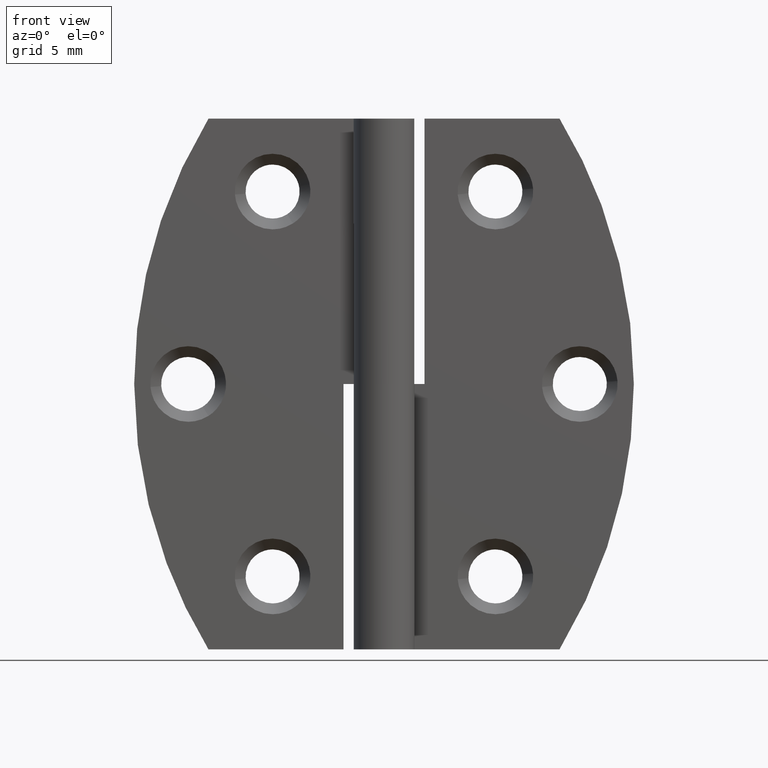
[diagram: clean part render]
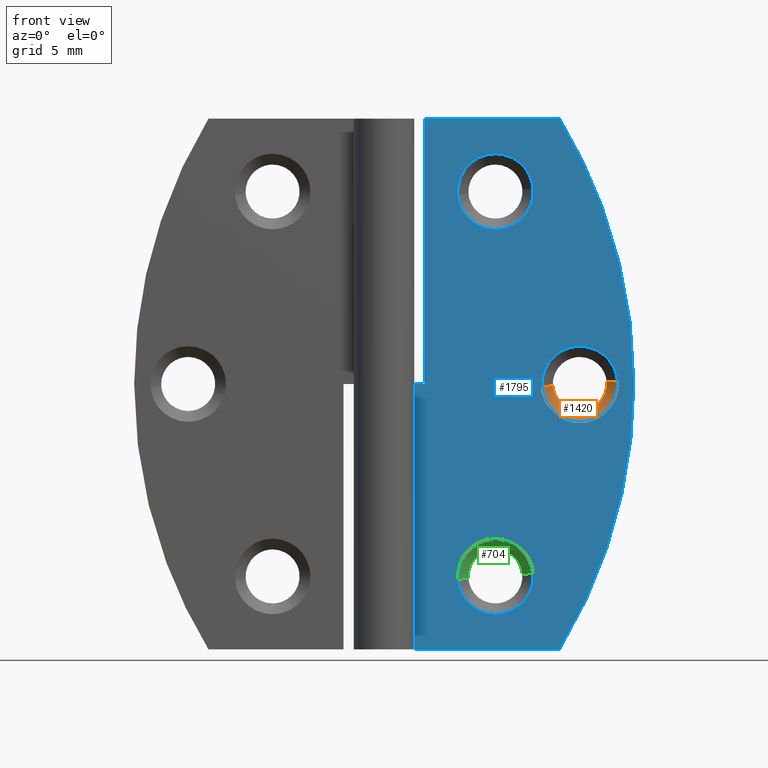
[diagram: same view with three faces highlighted in distinct colors, each labeled with its STEP entity id]
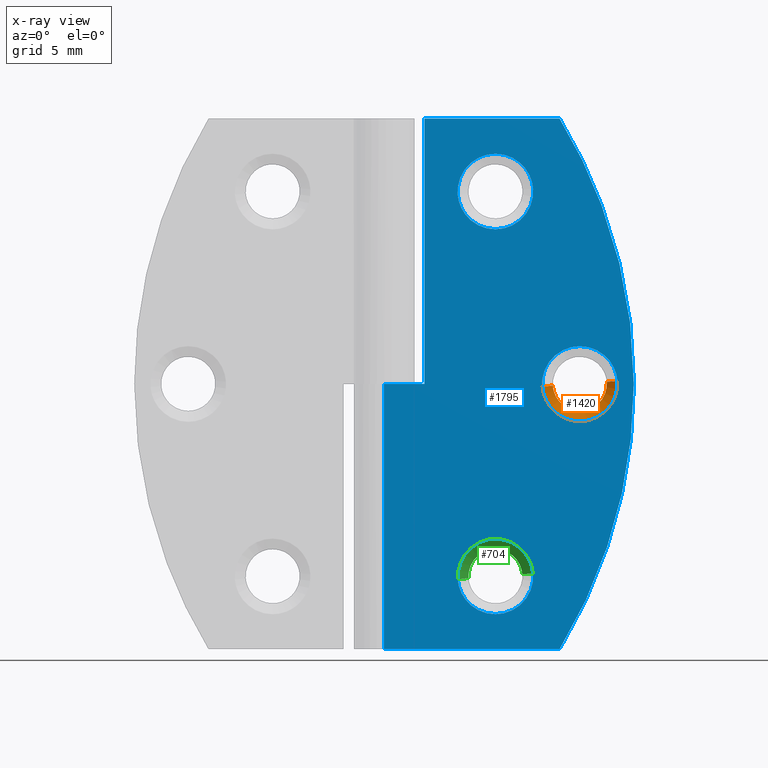
[diagram: x-ray of the same camera — body ghosted, the three highlighted faces saturated]
A machine part, front view with three faces highlighted in distinct colors.
The next image is the same camera in x-ray (body ghosted, the three faces saturated) — at least one of them is partly hidden behind the body in this view.
Their STEP definitions:

[orange] entity #1420 — the highlighted face is a freeform B-spline surface patch.
#1111=CARTESIAN_POINT('',(16.486938386870680,2.050000000000000,19.421800670512759));
#1112=VERTEX_POINT('',#1111);
#1113=CARTESIAN_POINT('',(14.500000000000000,2.050000000000000,17.650002000000001));
#1114=VERTEX_POINT('',#1113);
#1115=CARTESIAN_POINT('',(16.486938386870676,2.050000000000000,19.421800670512756));
#1116=CARTESIAN_POINT('',(16.283446011426051,2.050000000000000,17.650001999999994));
#1117=CARTESIAN_POINT('',(14.500000000000000,2.050000000000000,17.650002000000001));
#1125=(BOUNDED_CURVE()B_SPLINE_CURVE(2,(#1115,#1116,#1117),.UNSPECIFIED.,.F.,.U.)B_SPLINE_CURVE_WITH_KNOTS((3,3),(0.269767755877720,0.500000000000000),.UNSPECIFIED.)CURVE()GEOMETRIC_REPRESENTATION_ITEM()RATIONAL_B_SPLINE_CURVE((0.957343736458474,0.730266147777523,1.0))REPRESENTATION_ITEM(''));
#1126=EDGE_CURVE('',#1112,#1114,#1125,.T.);
#1165=CARTESIAN_POINT('',(12.503730392787149,2.049999999999717,19.527905090464120));
#1166=VERTEX_POINT('',#1165);
#1172=CARTESIAN_POINT('',(14.500000000000000,2.050000000000000,17.650002000000001));
#1173=CARTESIAN_POINT('',(12.618587706110493,2.049999999999999,17.650001999999997));
#1174=CARTESIAN_POINT('',(12.503730392787149,2.049999999999717,19.527905090464124));
#1182=(BOUNDED_CURVE()B_SPLINE_CURVE(2,(#1172,#1173,#1174),.UNSPECIFIED.,.F.,.U.)B_SPLINE_CURVE_WITH_KNOTS((3,3),(0.500000000000000,0.739332976895560),.UNSPECIFIED.)CURVE()GEOMETRIC_REPRESENTATION_ITEM()RATIONAL_B_SPLINE_CURVE((1.0,0.719603976115415,0.976072073078641))REPRESENTATION_ITEM(''));
#1183=EDGE_CURVE('',#1114,#1166,#1182,.T.);
#1210=CARTESIAN_POINT('',(16.493834667485281,2.049999999951913,19.806920191826809));
#1211=VERTEX_POINT('',#1210);
#1212=CARTESIAN_POINT('',(16.493834667485281,2.049999999951913,19.806920191826805));
#1213=CARTESIAN_POINT('',(16.500000000000007,2.050000000000000,19.728582214384385));
#1214=CARTESIAN_POINT('',(16.500000000000000,2.050000000000000,19.650002000000001));
#1215=CARTESIAN_POINT('',(16.500000000000004,2.050000000000001,19.535527529942829));
#1216=CARTESIAN_POINT('',(16.486938386870680,2.049999999999999,19.421800670512759));
#1224=(BOUNDED_CURVE()B_SPLINE_CURVE(2,(#1212,#1213,#1214,#1215,#1216),.UNSPECIFIED.,.F.,.U.)B_SPLINE_CURVE_WITH_KNOTS((3,2,3),(0.236331300569601,0.250000000000000,0.269767755877720),.UNSPECIFIED.)CURVE()GEOMETRIC_REPRESENTATION_ITEM()RATIONAL_B_SPLINE_CURVE((0.969723356039992,0.983986122507347,1.0,0.976840633409025,0.957343736458473))REPRESENTATION_ITEM(''));
#1225=EDGE_CURVE('',#1211,#1112,#1224,.T.);
#1313=CARTESIAN_POINT('',(17.291368534459469,1.249999999982986,19.869687468169520));
#1314=VERTEX_POINT('',#1313);
#1315=CARTESIAN_POINT('',(16.493834667485281,2.049999999951913,19.806920191826809));
#1316=CARTESIAN_POINT('',(17.291368534459469,1.249999999982986,19.869687468169520));
#1317=QUASI_UNIFORM_CURVE('',1,(#1315,#1316),.UNSPECIFIED.,.F.,.U.);
#1318=EDGE_CURVE('',#1211,#1314,#1317,.T.);
#1335=CARTESIAN_POINT('',(11.708631465540529,1.249999999982987,19.430316531830481));
#1336=VERTEX_POINT('',#1335);
#1352=CARTESIAN_POINT('',(12.503730392787149,2.049999999999717,19.527905090464120));
#1353=CARTESIAN_POINT('',(11.708631465540529,1.249999999982987,19.430316531830481));
#1354=QUASI_UNIFORM_CURVE('',1,(#1352,#1353),.UNSPECIFIED.,.F.,.U.);
#1355=EDGE_CURVE('',#1166,#1336,#1354,.T.);
#1361=CARTESIAN_POINT('',(12.521245478590592,2.070000000000001,19.556382282158193));
#1362=CARTESIAN_POINT('',(12.523658743511215,2.070000000000001,19.525718843994127));
#1363=CARTESIAN_POINT('',(12.681452688749539,2.070000000000001,17.520756669667275));
#1364=CARTESIAN_POINT('',(14.655349009541130,2.070000000000001,17.676105679208408));
#1365=CARTESIAN_POINT('',(16.629245330332726,2.070000000000001,17.831454688749542));
#1366=CARTESIAN_POINT('',(16.472794306479123,2.070000000000000,19.819353429017518));
#1367=CARTESIAN_POINT('',(16.471698749393667,2.070000000000000,19.833273801645429));
#1368=CARTESIAN_POINT('',(11.681274177962008,1.229500000000000,19.516641184761195));
#1369=CARTESIAN_POINT('',(11.684711861653234,1.229500000000000,19.472961271962330));
#1370=CARTESIAN_POINT('',(11.909488539706103,1.229500000000000,16.616902780705317));
#1371=CARTESIAN_POINT('',(14.721293879500390,1.229500000000000,16.838196660205710));
#1372=CARTESIAN_POINT('',(17.533099219294677,1.229500000000000,17.059490539706101));
#1373=CARTESIAN_POINT('',(17.310235525971908,1.229500000000000,19.891242255325210));
#1374=CARTESIAN_POINT('',(17.308674910436793,1.229499999999999,19.911071755828761));
#1382=(BOUNDED_SURFACE()B_SPLINE_SURFACE(2,1,((#1361,#1368),(#1362,#1369),(#1363,#1370),(#1364,#1371),(#1365,#1372),(#1366,#1373),(#1367,#1374)),.UNSPECIFIED.,.F.,.F.,.U.)B_SPLINE_SURFACE_WITH_KNOTS((3,1,2,1,3),(2,2),(0.0,0.104694727274855,4.777852137968115,9.451009548661375,9.498029496230796),(0.0,1.0),.UNSPECIFIED.)GEOMETRIC_REPRESENTATION_ITEM()RATIONAL_B_SPLINE_SURFACE(((1.013123621983784,1.013123621983784),(1.006561810991892,1.006561810991892),(0.707106781186548,0.707106781186548),(1.0,1.0),(0.707106781186548,0.707106781186548),(1.002947006184841,1.002947006184841),(1.005894012369682,1.005894012369682)))REPRESENTATION_ITEM('')SURFACE());
#1383=ORIENTED_EDGE('',*,*,#1225,.T.);
#1384=ORIENTED_EDGE('',*,*,#1126,.T.);
#1385=ORIENTED_EDGE('',*,*,#1183,.T.);
#1386=ORIENTED_EDGE('',*,*,#1355,.T.);
#1387=CARTESIAN_POINT('',(14.500000000000000,1.250000000000000,16.850002000000000));
#1388=VERTEX_POINT('',#1387);
#1389=CARTESIAN_POINT('',(14.500000000000000,1.250000000000000,16.850002000000000));
#1390=CARTESIAN_POINT('',(11.911706623599267,1.250000000000000,16.850002000000011));
#1391=CARTESIAN_POINT('',(11.708631465540536,1.249999999982987,19.430316531830485));
#1399=(BOUNDED_CURVE()B_SPLINE_CURVE(2,(#1389,#1390,#1391),.UNSPECIFIED.,.F.,.U.)B_SPLINE_CURVE_WITH_KNOTS((3,3),(0.500000000000000,0.736331300616772),.UNSPECIFIED.)CURVE()GEOMETRIC_REPRESENTATION_ITEM()RATIONAL_B_SPLINE_CURVE((1.0,0.723120658623936,0.969723356138436))REPRESENTATION_ITEM(''));
#1400=EDGE_CURVE('',#1388,#1336,#1399,.T.);
#1401=ORIENTED_EDGE('',*,*,#1400,.F.);
#1402=CARTESIAN_POINT('',(17.291368534459476,1.249999999982987,19.869687468169516));
#1403=CARTESIAN_POINT('',(17.300000000000004,1.250000000000000,19.760014299752296));
#1404=CARTESIAN_POINT('',(17.300000000000001,1.250000000000000,19.650002000000001));
#1405=CARTESIAN_POINT('',(17.299999999999997,1.250000000000000,16.850002000000003));
#1406=CARTESIAN_POINT('',(14.500000000000000,1.250000000000000,16.850002000000000));
#1414=(BOUNDED_CURVE()B_SPLINE_CURVE(2,(#1402,#1403,#1404,#1405,#1406),.UNSPECIFIED.,.F.,.U.)B_SPLINE_CURVE_WITH_KNOTS((3,2,3),(0.236331300616773,0.250000000000000,0.500000000000000),.UNSPECIFIED.)CURVE()GEOMETRIC_REPRESENTATION_ITEM()RATIONAL_B_SPLINE_CURVE((0.969723356138437,0.983986122562613,1.0,0.707106781186547,1.0))REPRESENTATION_ITEM(''));
#1415=EDGE_CURVE('',#1314,#1388,#1414,.T.);
#1416=ORIENTED_EDGE('',*,*,#1415,.F.);
#1417=ORIENTED_EDGE('',*,*,#1318,.F.);
#1418=EDGE_LOOP('',(#1383,#1384,#1385,#1386,#1401,#1416,#1417));
#1419=FACE_OUTER_BOUND('',#1418,.T.);
#1420=ADVANCED_FACE('',(#1419),#1382,.F.);

[blue] entity #1795 — the highlighted face is a freeform B-spline surface patch.
#657=CARTESIAN_POINT('',(11.041368534459570,1.249999999982986,5.619687468169518));
#658=VERTEX_POINT('',#657);
#664=CARTESIAN_POINT('',(8.250000000000101,1.250000000000000,8.200002000000000));
#665=VERTEX_POINT('',#664);
#666=CARTESIAN_POINT('',(8.250000000000101,1.250000000000000,8.200002000000000));
#667=CARTESIAN_POINT('',(10.838293376400850,1.250000000000000,8.200002000000000));
#668=CARTESIAN_POINT('',(11.041368534459572,1.249999999982986,5.619687468169517));
#676=(BOUNDED_CURVE()B_SPLINE_CURVE(2,(#666,#667,#668),.UNSPECIFIED.,.F.,.U.)B_SPLINE_CURVE_WITH_KNOTS((3,3),(0.0,0.236331300616773),.UNSPECIFIED.)CURVE()GEOMETRIC_REPRESENTATION_ITEM()RATIONAL_B_SPLINE_CURVE((1.0,0.723120658623934,0.969723356138438))REPRESENTATION_ITEM(''));
#677=EDGE_CURVE('',#665,#658,#676,.T.);
#679=CARTESIAN_POINT('',(5.458631465540631,1.249999999982986,5.180316531830481));
#680=VERTEX_POINT('',#679);
#681=CARTESIAN_POINT('',(5.458631465540631,1.249999999982986,5.180316531830481));
#682=CARTESIAN_POINT('',(5.450000000000101,1.250000000000000,5.289989700247703));
#683=CARTESIAN_POINT('',(5.450000000000101,1.250000000000000,5.400002000000000));
#684=CARTESIAN_POINT('',(5.450000000000101,1.250000000000000,8.200002000000000));
#685=CARTESIAN_POINT('',(8.250000000000101,1.250000000000000,8.200002000000000));
#693=(BOUNDED_CURVE()B_SPLINE_CURVE(2,(#681,#682,#683,#684,#685),.UNSPECIFIED.,.F.,.U.)B_SPLINE_CURVE_WITH_KNOTS((3,2,3),(0.736331300616773,0.750000000000000,1.0),.UNSPECIFIED.)CURVE()GEOMETRIC_REPRESENTATION_ITEM()RATIONAL_B_SPLINE_CURVE((0.969723356138437,0.983986122562613,1.0,0.707106781186547,1.0))REPRESENTATION_ITEM(''));
#694=EDGE_CURVE('',#680,#665,#693,.T.);
#731=CARTESIAN_POINT('',(8.250000000000101,1.250000000000000,2.600002000000000));
#732=VERTEX_POINT('',#731);
#733=CARTESIAN_POINT('',(8.250000000000101,1.250000000000000,2.600002000000000));
#734=CARTESIAN_POINT('',(5.661706623599367,1.250000000000000,2.600002000000000));
#735=CARTESIAN_POINT('',(5.458631465540631,1.249999999982986,5.180316531830481));
#743=(BOUNDED_CURVE()B_SPLINE_CURVE(2,(#733,#734,#735),.UNSPECIFIED.,.F.,.U.)B_SPLINE_CURVE_WITH_KNOTS((3,3),(0.500000000000000,0.736331300616772),.UNSPECIFIED.)CURVE()GEOMETRIC_REPRESENTATION_ITEM()RATIONAL_B_SPLINE_CURVE((1.0,0.723120658623936,0.969723356138436))REPRESENTATION_ITEM(''));
#744=EDGE_CURVE('',#732,#680,#743,.T.);
#746=CARTESIAN_POINT('',(11.041368534459574,1.249999999982986,5.619687468169518));
#747=CARTESIAN_POINT('',(11.050000000000100,1.250000000000000,5.510014299752297));
#748=CARTESIAN_POINT('',(11.050000000000100,1.250000000000000,5.400002000000000));
#749=CARTESIAN_POINT('',(11.050000000000102,1.250000000000000,2.600002000000000));
#750=CARTESIAN_POINT('',(8.250000000000101,1.250000000000000,2.600002000000000));
#758=(BOUNDED_CURVE()B_SPLINE_CURVE(2,(#746,#747,#748,#749,#750),.UNSPECIFIED.,.F.,.U.)B_SPLINE_CURVE_WITH_KNOTS((3,2,3),(0.236331300616773,0.250000000000000,0.500000000000000),.UNSPECIFIED.)CURVE()GEOMETRIC_REPRESENTATION_ITEM()RATIONAL_B_SPLINE_CURVE((0.969723356138438,0.983986122562613,1.0,0.707106781186547,1.0))REPRESENTATION_ITEM(''));
#759=EDGE_CURVE('',#658,#732,#758,.T.);
#985=CARTESIAN_POINT('',(11.041368534459570,1.249999999982986,34.119694468169612));
#986=VERTEX_POINT('',#985);
#992=CARTESIAN_POINT('',(8.250000000000101,1.250000000000000,36.700009000000087));
#993=VERTEX_POINT('',#992);
#994=CARTESIAN_POINT('',(8.250000000000101,1.250000000000000,36.700009000000087));
#995=CARTESIAN_POINT('',(10.838293376400852,1.250000000000000,36.700009000000087));
#996=CARTESIAN_POINT('',(11.041368534459570,1.249999999982985,34.119694468169612));
#1004=(BOUNDED_CURVE()B_SPLINE_CURVE(2,(#994,#995,#996),.UNSPECIFIED.,.F.,.U.)B_SPLINE_CURVE_WITH_KNOTS((3,3),(0.0,0.236331300616773),.UNSPECIFIED.)CURVE()GEOMETRIC_REPRESENTATION_ITEM()RATIONAL_B_SPLINE_CURVE((1.0,0.723120658623934,0.969723356138438))REPRESENTATION_ITEM(''));
#1005=EDGE_CURVE('',#993,#986,#1004,.T.);
#1007=CARTESIAN_POINT('',(5.458631465540631,1.249999999982987,33.680323531830581));
#1008=VERTEX_POINT('',#1007);
#1009=CARTESIAN_POINT('',(5.458631465540631,1.249999999982987,33.680323531830581));
#1010=CARTESIAN_POINT('',(5.450000000000100,1.250000000000000,33.789996700247798));
#1011=CARTESIAN_POINT('',(5.450000000000101,1.250000000000000,33.900009000000097));
#1012=CARTESIAN_POINT('',(5.450000000000101,1.250000000000000,36.700009000000094));
#1013=CARTESIAN_POINT('',(8.250000000000101,1.250000000000000,36.700009000000087));
#1021=(BOUNDED_CURVE()B_SPLINE_CURVE(2,(#1009,#1010,#1011,#1012,#1013),.UNSPECIFIED.,.F.,.U.)B_SPLINE_CURVE_WITH_KNOTS((3,2,3),(0.736331300616773,0.750000000000000,1.0),.UNSPECIFIED.)CURVE()GEOMETRIC_REPRESENTATION_ITEM()RATIONAL_B_SPLINE_CURVE((0.969723356138437,0.983986122562613,1.0,0.707106781186547,1.0))REPRESENTATION_ITEM(''));
#1022=EDGE_CURVE('',#1008,#993,#1021,.T.);
#1059=CARTESIAN_POINT('',(8.250000000000101,1.250000000000000,31.100009000000099));
#1060=VERTEX_POINT('',#1059);
#1061=CARTESIAN_POINT('',(8.250000000000101,1.250000000000000,31.100009000000099));
#1062=CARTESIAN_POINT('',(5.661706623599367,1.250000000000000,31.100009000000103));
#1063=CARTESIAN_POINT('',(5.458631465540631,1.249999999982986,33.680323531830581));
#1071=(BOUNDED_CURVE()B_SPLINE_CURVE(2,(#1061,#1062,#1063),.UNSPECIFIED.,.F.,.U.)B_SPLINE_CURVE_WITH_KNOTS((3,3),(0.500000000000000,0.736331300616772),.UNSPECIFIED.)CURVE()GEOMETRIC_REPRESENTATION_ITEM()RATIONAL_B_SPLINE_CURVE((1.0,0.723120658623936,0.969723356138436))REPRESENTATION_ITEM(''));
#1072=EDGE_CURVE('',#1060,#1008,#1071,.T.);
#1074=CARTESIAN_POINT('',(11.041368534459570,1.249999999982985,34.119694468169612));
#1075=CARTESIAN_POINT('',(11.050000000000098,1.250000000000000,34.010021299752388));
#1076=CARTESIAN_POINT('',(11.050000000000100,1.250000000000000,33.900009000000097));
#1077=CARTESIAN_POINT('',(11.050000000000102,1.250000000000000,31.100009000000103));
#1078=CARTESIAN_POINT('',(8.250000000000101,1.250000000000000,31.100009000000099));
#1086=(BOUNDED_CURVE()B_SPLINE_CURVE(2,(#1074,#1075,#1076,#1077,#1078),.UNSPECIFIED.,.F.,.U.)B_SPLINE_CURVE_WITH_KNOTS((3,2,3),(0.236331300616773,0.250000000000000,0.500000000000000),.UNSPECIFIED.)CURVE()GEOMETRIC_REPRESENTATION_ITEM()RATIONAL_B_SPLINE_CURVE((0.969723356138438,0.983986122562613,1.0,0.707106781186547,1.0))REPRESENTATION_ITEM(''));
#1087=EDGE_CURVE('',#986,#1060,#1086,.T.);
#1313=CARTESIAN_POINT('',(17.291368534459469,1.249999999982986,19.869687468169520));
#1314=VERTEX_POINT('',#1313);
#1320=CARTESIAN_POINT('',(14.500000000000000,1.250000000000000,22.450002000000001));
#1321=VERTEX_POINT('',#1320);
#1322=CARTESIAN_POINT('',(14.500000000000000,1.250000000000000,22.450002000000001));
#1323=CARTESIAN_POINT('',(17.088293376400742,1.250000000000000,22.450002000000005));
#1324=CARTESIAN_POINT('',(17.291368534459476,1.249999999982987,19.869687468169516));
#1332=(BOUNDED_CURVE()B_SPLINE_CURVE(2,(#1322,#1323,#1324),.UNSPECIFIED.,.F.,.U.)B_SPLINE_CURVE_WITH_KNOTS((3,3),(0.0,0.236331300616773),.UNSPECIFIED.)CURVE()GEOMETRIC_REPRESENTATION_ITEM()RATIONAL_B_SPLINE_CURVE((1.0,0.723120658623935,0.969723356138437))REPRESENTATION_ITEM(''));
#1333=EDGE_CURVE('',#1321,#1314,#1332,.T.);
#1335=CARTESIAN_POINT('',(11.708631465540529,1.249999999982987,19.430316531830481));
#1336=VERTEX_POINT('',#1335);
#1337=CARTESIAN_POINT('',(11.708631465540529,1.249999999982987,19.430316531830478));
#1338=CARTESIAN_POINT('',(11.700000000000001,1.250000000000000,19.539989700247709));
#1339=CARTESIAN_POINT('',(11.699999999999999,1.250000000000000,19.650002000000001));
#1340=CARTESIAN_POINT('',(11.700000000000001,1.250000000000000,22.450001999999994));
#1341=CARTESIAN_POINT('',(14.500000000000000,1.250000000000000,22.450002000000001));
#1349=(BOUNDED_CURVE()B_SPLINE_CURVE(2,(#1337,#1338,#1339,#1340,#1341),.UNSPECIFIED.,.F.,.U.)B_SPLINE_CURVE_WITH_KNOTS((3,2,3),(0.736331300616773,0.750000000000000,1.0),.UNSPECIFIED.)CURVE()GEOMETRIC_REPRESENTATION_ITEM()RATIONAL_B_SPLINE_CURVE((0.969723356138437,0.983986122562613,1.0,0.707106781186547,1.0))REPRESENTATION_ITEM(''));
#1350=EDGE_CURVE('',#1336,#1321,#1349,.T.);
#1387=CARTESIAN_POINT('',(14.500000000000000,1.250000000000000,16.850002000000000));
#1388=VERTEX_POINT('',#1387);
#1389=CARTESIAN_POINT('',(14.500000000000000,1.250000000000000,16.850002000000000));
#1390=CARTESIAN_POINT('',(11.911706623599267,1.250000000000000,16.850002000000011));
#1391=CARTESIAN_POINT('',(11.708631465540536,1.249999999982987,19.430316531830485));
#1399=(BOUNDED_CURVE()B_SPLINE_CURVE(2,(#1389,#1390,#1391),.UNSPECIFIED.,.F.,.U.)B_SPLINE_CURVE_WITH_KNOTS((3,3),(0.500000000000000,0.736331300616772),.UNSPECIFIED.)CURVE()GEOMETRIC_REPRESENTATION_ITEM()RATIONAL_B_SPLINE_CURVE((1.0,0.723120658623936,0.969723356138436))REPRESENTATION_ITEM(''));
#1400=EDGE_CURVE('',#1388,#1336,#1399,.T.);
#1402=CARTESIAN_POINT('',(17.291368534459476,1.249999999982987,19.869687468169516));
#1403=CARTESIAN_POINT('',(17.300000000000004,1.250000000000000,19.760014299752296));
#1404=CARTESIAN_POINT('',(17.300000000000001,1.250000000000000,19.650002000000001));
#1405=CARTESIAN_POINT('',(17.299999999999997,1.250000000000000,16.850002000000003));
#1406=CARTESIAN_POINT('',(14.500000000000000,1.250000000000000,16.850002000000000));
#1414=(BOUNDED_CURVE()B_SPLINE_CURVE(2,(#1402,#1403,#1404,#1405,#1406),.UNSPECIFIED.,.F.,.U.)B_SPLINE_CURVE_WITH_KNOTS((3,2,3),(0.236331300616773,0.250000000000000,0.500000000000000),.UNSPECIFIED.)CURVE()GEOMETRIC_REPRESENTATION_ITEM()RATIONAL_B_SPLINE_CURVE((0.969723356138437,0.983986122562613,1.0,0.707106781186547,1.0))REPRESENTATION_ITEM(''));
#1415=EDGE_CURVE('',#1314,#1388,#1414,.T.);
#1426=CARTESIAN_POINT('',(0.0,1.250000000000000,19.650002000000001));
#1427=VERTEX_POINT('',#1426);
#1428=CARTESIAN_POINT('',(3.000000000000100,1.249999999999972,19.650002000000001));
#1429=VERTEX_POINT('',#1428);
#1430=CARTESIAN_POINT('',(0.0,1.250000000000000,19.650002000000001));
#1431=CARTESIAN_POINT('',(3.000000000000100,1.249999999999972,19.650002000000001));
#1432=QUASI_UNIFORM_CURVE('',1,(#1430,#1431),.UNSPECIFIED.,.F.,.U.);
#1433=EDGE_CURVE('',#1427,#1429,#1432,.T.);
#1504=CARTESIAN_POINT('',(3.000000000000100,1.250000000000000,39.300003000000103));
#1505=VERTEX_POINT('',#1504);
#1506=CARTESIAN_POINT('',(3.000000000000100,1.249999999999972,19.650002000000001));
#1507=CARTESIAN_POINT('',(3.000000000000100,1.250000000000000,39.300003000000103));
#1508=QUASI_UNIFORM_CURVE('',1,(#1506,#1507),.UNSPECIFIED.,.F.,.U.);
#1509=EDGE_CURVE('',#1429,#1505,#1508,.T.);
#1558=CARTESIAN_POINT('',(13.000003655354099,1.249999999999972,39.300003000000103));
#1559=VERTEX_POINT('',#1558);
#1565=CARTESIAN_POINT('',(13.000003047973660,1.249999999999972,-7.105427E-015));
#1566=VERTEX_POINT('',#1565);
#1567=CARTESIAN_POINT('',(13.000003047973660,1.249999999999972,-1.387779E-014));
#1568=CARTESIAN_POINT('',(24.935030729928812,1.249999999999972,19.650001315544525));
#1569=CARTESIAN_POINT('',(13.000003655354091,1.249999999999972,39.300003000000082));
#1577=(BOUNDED_CURVE()B_SPLINE_CURVE(2,(#1567,#1568,#1569),.UNSPECIFIED.,.F.,.U.)CURVE()GEOMETRIC_REPRESENTATION_ITEM()QUASI_UNIFORM_CURVE()RATIONAL_B_SPLINE_CURVE((1.0,0.854697405180328,1.0))REPRESENTATION_ITEM(''));
#1578=EDGE_CURVE('',#1566,#1559,#1577,.T.);
#1594=CARTESIAN_POINT('',(0.0,1.250000000000000,0.0));
#1595=VERTEX_POINT('',#1594);
#1596=CARTESIAN_POINT('',(13.000003047973660,1.249999999999972,-7.105427E-015));
#1597=CARTESIAN_POINT('',(0.0,1.250000000000000,0.0));
#1598=QUASI_UNIFORM_CURVE('',1,(#1596,#1597),.UNSPECIFIED.,.F.,.U.);
#1599=EDGE_CURVE('',#1566,#1595,#1598,.T.);
#1669=CARTESIAN_POINT('',(13.000003655354099,1.249999999999972,39.300003000000103));
#1670=CARTESIAN_POINT('',(3.000000000000100,1.250000000000000,39.300003000000103));
#1671=QUASI_UNIFORM_CURVE('',1,(#1669,#1670),.UNSPECIFIED.,.F.,.U.);
#1672=EDGE_CURVE('',#1559,#1505,#1671,.T.);
#1753=CARTESIAN_POINT('',(0.0,1.250000000000000,19.650002000000001));
#1754=CARTESIAN_POINT('',(0.0,1.250000000000000,0.0));
#1755=QUASI_UNIFORM_CURVE('',1,(#1753,#1754),.UNSPECIFIED.,.F.,.U.);
#1756=EDGE_CURVE('',#1427,#1595,#1755,.T.);
#1764=CARTESIAN_POINT('',(-0.924075163943405,1.250000000000000,41.263038073679070));
#1765=CARTESIAN_POINT('',(-0.924075163943405,1.250000000000000,-1.963036127787204));
#1766=CARTESIAN_POINT('',(19.424079660152231,1.250000000000000,41.263038073679070));
#1767=CARTESIAN_POINT('',(19.424079660152231,1.250000000000000,-1.963036127787204));
#1768=B_SPLINE_SURFACE_WITH_KNOTS('',1,1,((#1764,#1766),(#1765,#1767)),.UNSPECIFIED.,.F.,.F.,.U.,(2,2),(2,2),(0.0,43.226074201466282),(0.0,20.348154824095630),.UNSPECIFIED.);
#1769=ORIENTED_EDGE('',*,*,#1509,.F.);
#1770=ORIENTED_EDGE('',*,*,#1433,.F.);
#1771=ORIENTED_EDGE('',*,*,#1756,.T.);
#1772=ORIENTED_EDGE('',*,*,#1599,.F.);
#1773=ORIENTED_EDGE('',*,*,#1578,.T.);
#1774=ORIENTED_EDGE('',*,*,#1672,.T.);
#1775=EDGE_LOOP('',(#1769,#1770,#1771,#1772,#1773,#1774));
#1776=FACE_OUTER_BOUND('',#1775,.T.);
#1777=ORIENTED_EDGE('',*,*,#1400,.T.);
#1778=ORIENTED_EDGE('',*,*,#1350,.T.);
#1779=ORIENTED_EDGE('',*,*,#1333,.T.);
#1780=ORIENTED_EDGE('',*,*,#1415,.T.);
#1781=EDGE_LOOP('',(#1777,#1778,#1779,#1780));
#1782=FACE_BOUND('',#1781,.T.);
#1783=ORIENTED_EDGE('',*,*,#1072,.T.);
#1784=ORIENTED_EDGE('',*,*,#1022,.T.);
#1785=ORIENTED_EDGE('',*,*,#1005,.T.);
#1786=ORIENTED_EDGE('',*,*,#1087,.T.);
#1787=EDGE_LOOP('',(#1783,#1784,#1785,#1786));
#1788=FACE_BOUND('',#1787,.T.);
#1789=ORIENTED_EDGE('',*,*,#744,.T.);
#1790=ORIENTED_EDGE('',*,*,#694,.T.);
#1791=ORIENTED_EDGE('',*,*,#677,.T.);
#1792=ORIENTED_EDGE('',*,*,#759,.T.);
#1793=EDGE_LOOP('',(#1789,#1790,#1791,#1792));
#1794=FACE_BOUND('',#1793,.T.);
#1795=ADVANCED_FACE('',(#1776,#1782,#1788,#1794),#1768,.T.);

[green] entity #704 — the highlighted face is a freeform B-spline surface patch.
#509=CARTESIAN_POINT('',(6.253730392787248,2.049999999999717,5.277905090464125));
#510=VERTEX_POINT('',#509);
#554=CARTESIAN_POINT('',(10.243834667485380,2.049999999951914,5.556920191826806));
#555=VERTEX_POINT('',#554);
#571=CARTESIAN_POINT('',(8.250000000000101,2.050000000000000,7.400002000000000));
#572=VERTEX_POINT('',#571);
#573=CARTESIAN_POINT('',(8.250000000000101,2.050000000000000,7.400002000000000));
#574=CARTESIAN_POINT('',(10.098780982633171,2.050000000000000,7.400001999999998));
#575=CARTESIAN_POINT('',(10.243834667485384,2.049999999951914,5.556920191826806));
#583=(BOUNDED_CURVE()B_SPLINE_CURVE(2,(#573,#574,#575),.UNSPECIFIED.,.F.,.U.)B_SPLINE_CURVE_WITH_KNOTS((3,3),(0.0,0.236331300569601),.UNSPECIFIED.)CURVE()GEOMETRIC_REPRESENTATION_ITEM()RATIONAL_B_SPLINE_CURVE((1.0,0.723120658679201,0.969723356039992))REPRESENTATION_ITEM(''));
#584=EDGE_CURVE('',#572,#555,#583,.T.);
#586=CARTESIAN_POINT('',(6.253730392787248,2.049999999999717,5.277905090464125));
#587=CARTESIAN_POINT('',(6.250000000000101,2.050000000000000,5.338896558407419));
#588=CARTESIAN_POINT('',(6.250000000000101,2.050000000000000,5.400002000000000));
#589=CARTESIAN_POINT('',(6.250000000000101,2.050000000000001,7.400001999999999));
#590=CARTESIAN_POINT('',(8.250000000000101,2.050000000000000,7.400002000000000));
#598=(BOUNDED_CURVE()B_SPLINE_CURVE(2,(#586,#587,#588,#589,#590),.UNSPECIFIED.,.F.,.U.)B_SPLINE_CURVE_WITH_KNOTS((3,2,3),(0.739332976895560,0.750000000000000,1.0),.UNSPECIFIED.)CURVE()GEOMETRIC_REPRESENTATION_ITEM()RATIONAL_B_SPLINE_CURVE((0.976072073078641,0.987502805071133,1.0,0.707106781186548,1.0))REPRESENTATION_ITEM(''));
#599=EDGE_CURVE('',#510,#572,#598,.T.);
#638=CARTESIAN_POINT('',(10.223896320791690,2.070000000000001,5.555351009541134));
#639=CARTESIAN_POINT('',(10.068547311250558,2.070000000000001,7.529247330332725));
#640=CARTESIAN_POINT('',(8.094650990458968,2.070000000000001,7.373898320791591));
#641=CARTESIAN_POINT('',(6.120754669667377,2.070000000000001,7.218549311250457));
#642=CARTESIAN_POINT('',(6.276103679208510,2.070000000000001,5.244652990458866));
#643=CARTESIAN_POINT('',(11.061805339794390,1.229500000000000,5.621295879500388));
#644=CARTESIAN_POINT('',(10.840511460293998,1.229500000000000,8.433101219294674));
#645=CARTESIAN_POINT('',(8.028706120499713,1.229500000000000,8.211807339794286));
#646=CARTESIAN_POINT('',(5.216900780705428,1.229500000000000,7.990513460293896));
#647=CARTESIAN_POINT('',(5.438194660205816,1.229500000000000,5.178708120499612));
#655=(BOUNDED_SURFACE()B_SPLINE_SURFACE(2,1,((#638,#643),(#639,#644),(#640,#645),(#641,#646),(#642,#647)),.UNSPECIFIED.,.F.,.F.,.U.)B_SPLINE_SURFACE_WITH_KNOTS((3,2,3),(2,2),(0.0,4.673157410693258,9.346314821386516),(0.0,1.0),.UNSPECIFIED.)GEOMETRIC_REPRESENTATION_ITEM()RATIONAL_B_SPLINE_SURFACE(((1.0,1.0),(0.707106781186548,0.707106781186548),(1.0,1.0),(0.707106781186548,0.707106781186548),(1.0,1.0)))REPRESENTATION_ITEM('')SURFACE());
#656=ORIENTED_EDGE('',*,*,#584,.T.);
#657=CARTESIAN_POINT('',(11.041368534459570,1.249999999982986,5.619687468169518));
#658=VERTEX_POINT('',#657);
#659=CARTESIAN_POINT('',(10.243834667485380,2.049999999951914,5.556920191826806));
#660=CARTESIAN_POINT('',(11.041368534459570,1.249999999982986,5.619687468169518));
#661=QUASI_UNIFORM_CURVE('',1,(#659,#660),.UNSPECIFIED.,.F.,.U.);
#662=EDGE_CURVE('',#555,#658,#661,.T.);
#663=ORIENTED_EDGE('',*,*,#662,.T.);
#664=CARTESIAN_POINT('',(8.250000000000101,1.250000000000000,8.200002000000000));
#665=VERTEX_POINT('',#664);
#666=CARTESIAN_POINT('',(8.250000000000101,1.250000000000000,8.200002000000000));
#667=CARTESIAN_POINT('',(10.838293376400850,1.250000000000000,8.200002000000000));
#668=CARTESIAN_POINT('',(11.041368534459572,1.249999999982986,5.619687468169517));
#676=(BOUNDED_CURVE()B_SPLINE_CURVE(2,(#666,#667,#668),.UNSPECIFIED.,.F.,.U.)B_SPLINE_CURVE_WITH_KNOTS((3,3),(0.0,0.236331300616773),.UNSPECIFIED.)CURVE()GEOMETRIC_REPRESENTATION_ITEM()RATIONAL_B_SPLINE_CURVE((1.0,0.723120658623934,0.969723356138438))REPRESENTATION_ITEM(''));
#677=EDGE_CURVE('',#665,#658,#676,.T.);
#678=ORIENTED_EDGE('',*,*,#677,.F.);
#679=CARTESIAN_POINT('',(5.458631465540631,1.249999999982986,5.180316531830481));
#680=VERTEX_POINT('',#679);
#681=CARTESIAN_POINT('',(5.458631465540631,1.249999999982986,5.180316531830481));
#682=CARTESIAN_POINT('',(5.450000000000101,1.250000000000000,5.289989700247703));
#683=CARTESIAN_POINT('',(5.450000000000101,1.250000000000000,5.400002000000000));
#684=CARTESIAN_POINT('',(5.450000000000101,1.250000000000000,8.200002000000000));
#685=CARTESIAN_POINT('',(8.250000000000101,1.250000000000000,8.200002000000000));
#693=(BOUNDED_CURVE()B_SPLINE_CURVE(2,(#681,#682,#683,#684,#685),.UNSPECIFIED.,.F.,.U.)B_SPLINE_CURVE_WITH_KNOTS((3,2,3),(0.736331300616773,0.750000000000000,1.0),.UNSPECIFIED.)CURVE()GEOMETRIC_REPRESENTATION_ITEM()RATIONAL_B_SPLINE_CURVE((0.969723356138437,0.983986122562613,1.0,0.707106781186547,1.0))REPRESENTATION_ITEM(''));
#694=EDGE_CURVE('',#680,#665,#693,.T.);
#695=ORIENTED_EDGE('',*,*,#694,.F.);
#696=CARTESIAN_POINT('',(6.253730392787248,2.049999999999717,5.277905090464125));
#697=CARTESIAN_POINT('',(5.458631465540631,1.249999999982986,5.180316531830481));
#698=QUASI_UNIFORM_CURVE('',1,(#696,#697),.UNSPECIFIED.,.F.,.U.);
#699=EDGE_CURVE('',#510,#680,#698,.T.);
#700=ORIENTED_EDGE('',*,*,#699,.F.);
#701=ORIENTED_EDGE('',*,*,#599,.T.);
#702=EDGE_LOOP('',(#656,#663,#678,#695,#700,#701));
#703=FACE_OUTER_BOUND('',#702,.T.);
#704=ADVANCED_FACE('',(#703),#655,.F.);